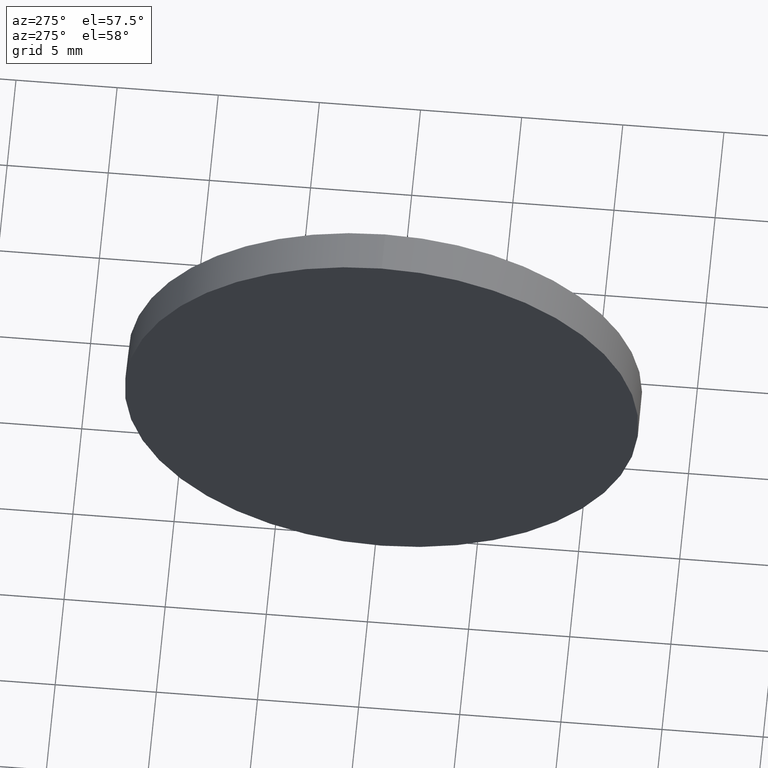
[diagram: clean part render]
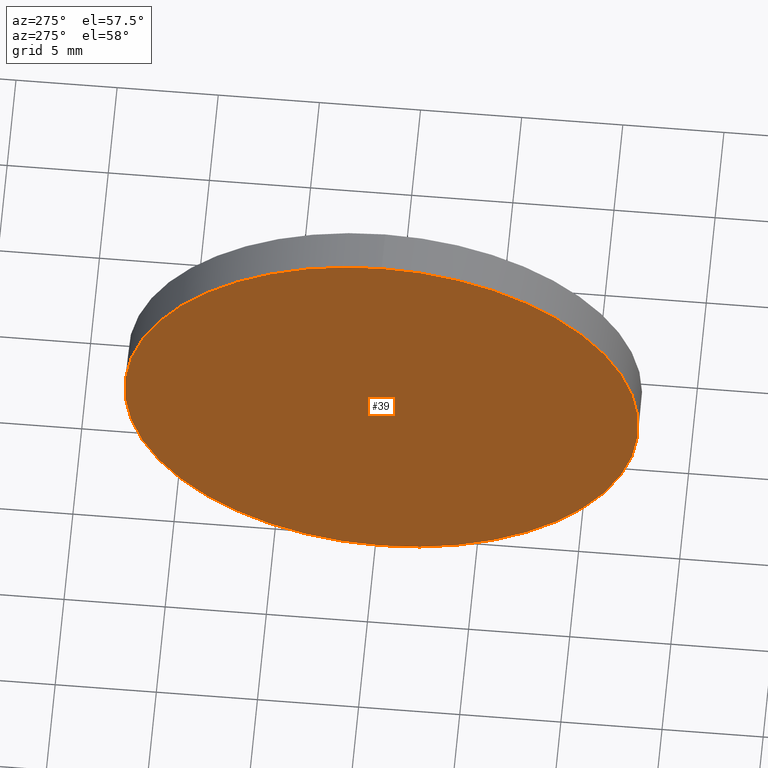
[diagram: same view with one face highlighted and labeled with its STEP entity id]
A machine part, auxiliary view. The second image highlights one B-rep face of the part: STEP entity #39.
In plain terms, the highlighted planar face has unit normal (1, 0, 0).
Its self-contained STEP definition (entity closure, byte-faithful):
#1 = EDGE_LOOP ( 'NONE', ( #17, #90 ) ) ;
#9 = DIRECTION ( 'NONE',  ( 1.000000000000000000, 0.0000000000000000000, 0.0000000000000000000 ) ) ;
#13 = DIRECTION ( 'NONE',  ( -1.000000000000000000, -0.0000000000000000000, -0.0000000000000000000 ) ) ;
#17 = ORIENTED_EDGE ( 'NONE', *, *, #89, .T. ) ;
#25 = CIRCLE ( 'NONE', #50, 12.70000000000000600 ) ;
#39 = ADVANCED_FACE ( 'NONE', ( #142 ), #42, .F. ) ;
#42 = PLANE ( 'NONE',  #145 ) ;
#46 = DIRECTION ( 'NONE',  ( 0.0000000000000000000, 0.0000000000000000000, 1.000000000000000000 ) ) ;
#50 = AXIS2_PLACEMENT_3D ( 'NONE', #119, #96, #46 ) ;
#59 = CARTESIAN_POINT ( 'NONE',  ( 449.1457907511151000, 24.66332668571183700, 12.70000000000000600 ) ) ;
#64 = VERTEX_POINT ( 'NONE', #167 ) ;
#89 = EDGE_CURVE ( 'NONE', #169, #64, #25, .T. ) ;
#90 = ORIENTED_EDGE ( 'NONE', *, *, #175, .T. ) ;
#96 = DIRECTION ( 'NONE',  ( -1.000000000000000000, -0.0000000000000000000, -0.0000000000000000000 ) ) ;
#108 = AXIS2_PLACEMENT_3D ( 'NONE', #170, #13, #141 ) ;
#119 = CARTESIAN_POINT ( 'NONE',  ( 449.1457907511151000, 24.66332668571183700, 0.0000000000000000000 ) ) ;
#132 = CARTESIAN_POINT ( 'NONE',  ( 449.1457907511151000, 24.66332668571183700, 0.0000000000000000000 ) ) ;
#141 = DIRECTION ( 'NONE',  ( 0.0000000000000000000, 0.0000000000000000000, 1.000000000000000000 ) ) ;
#142 = FACE_OUTER_BOUND ( 'NONE', #1, .T. ) ;
#143 = CIRCLE ( 'NONE', #108, 12.70000000000000600 ) ;
#145 = AXIS2_PLACEMENT_3D ( 'NONE', #132, #9, #149 ) ;
#149 = DIRECTION ( 'NONE',  ( 0.0000000000000000000, 0.0000000000000000000, -1.000000000000000000 ) ) ;
#167 = CARTESIAN_POINT ( 'NONE',  ( 449.1457907511151000, 24.66332668571183700, -12.70000000000000600 ) ) ;
#169 = VERTEX_POINT ( 'NONE', #59 ) ;
#170 = CARTESIAN_POINT ( 'NONE',  ( 449.1457907511151000, 24.66332668571183700, 0.0000000000000000000 ) ) ;
#175 = EDGE_CURVE ( 'NONE', #64, #169, #143, .T. ) ;